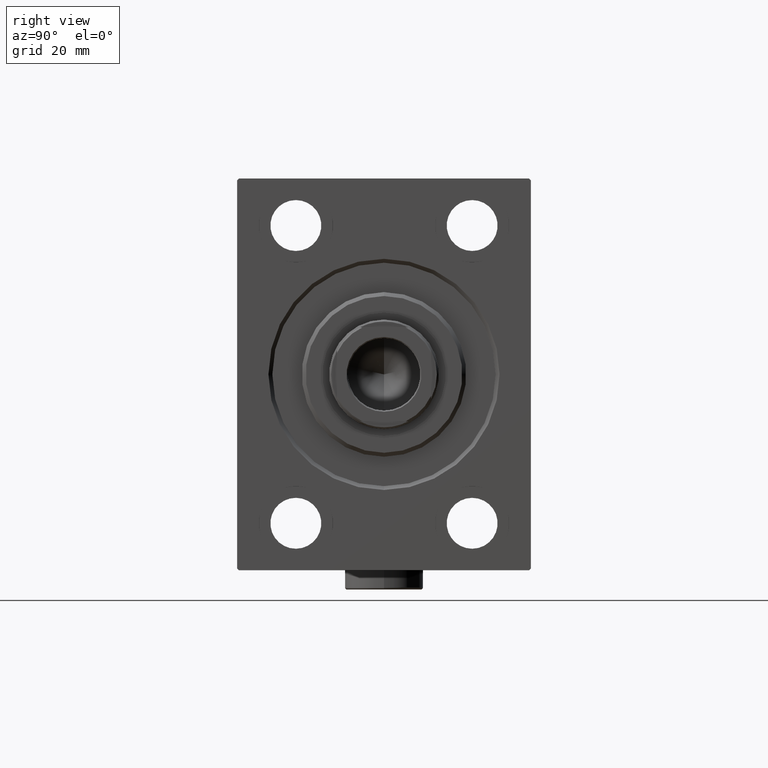
[diagram: clean part render]
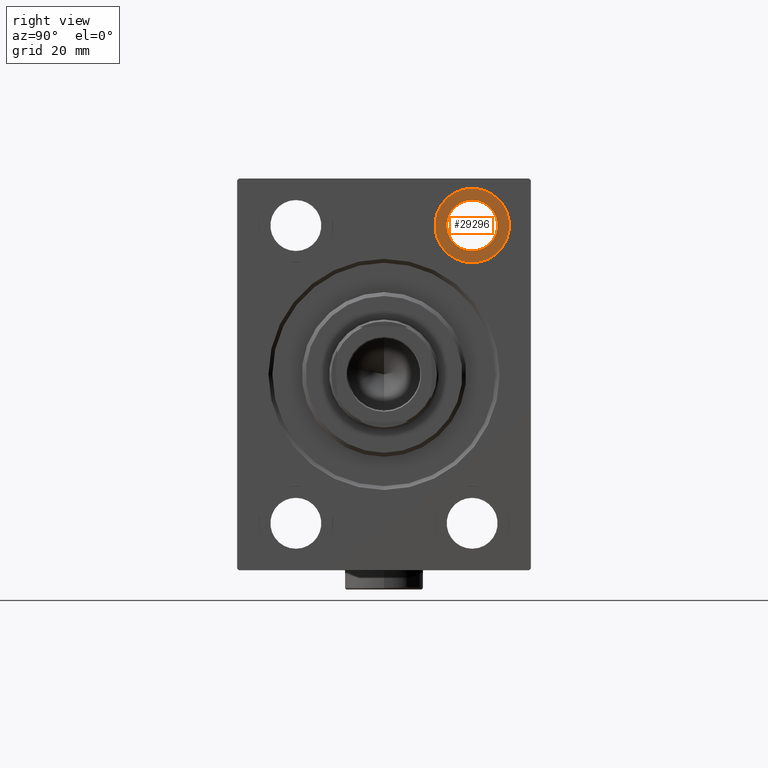
[diagram: same view with one face highlighted and labeled with its STEP entity id]
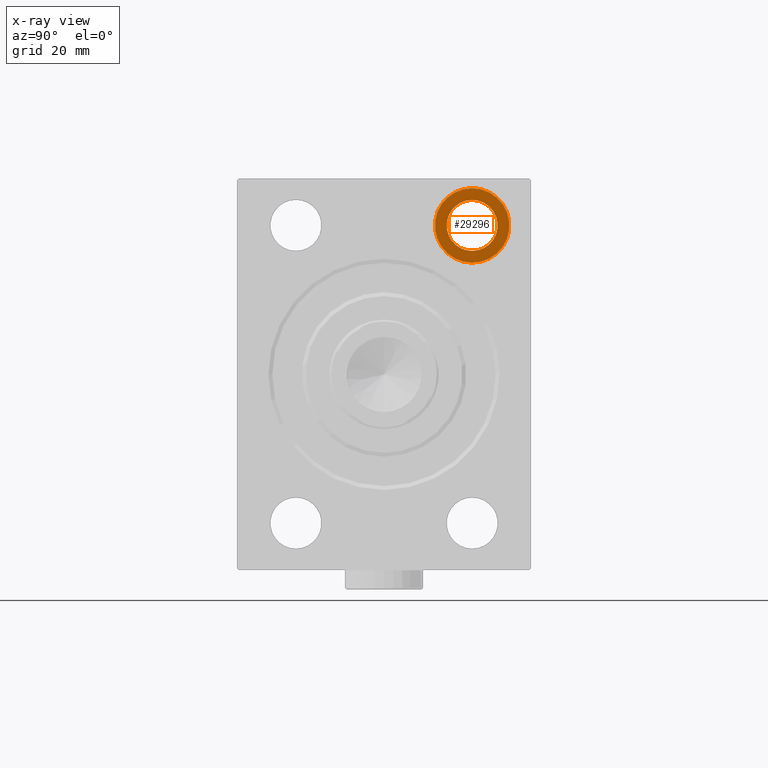
[diagram: x-ray of the same camera — body ghosted, the highlighted face saturated]
A machine part, right view. The second image highlights one B-rep face of the part: STEP entity #29296.
The next image is the same camera in x-ray: the body ghosted, the highlighted face saturated — about 0% of this face is hidden behind the body in this view.
In plain terms, the highlighted planar face has unit normal (1, -0, 0).
Its self-contained STEP definition (entity closure, byte-faithful):
#1007 = EDGE_LOOP ( 'NONE', ( #45617, #8638 ) ) ;
#1679 = FACE_BOUND ( 'NONE', #1007, .T. ) ;
#4326 = CIRCLE ( 'NONE', #28875, 9.500000000000001776 ) ;
#6506 = CARTESIAN_POINT ( 'NONE',  ( 12.99999999999999822, 22.49999999999999289, -44.50000000000000000 ) ) ;
#7369 = CIRCLE ( 'NONE', #42279, 6.499999999999999112 ) ;
#8447 = VERTEX_POINT ( 'NONE', #39860 ) ;
#8638 = ORIENTED_EDGE ( 'NONE', *, *, #14310, .F. ) ;
#9124 = PLANE ( 'NONE',  #21513 ) ;
#9682 = EDGE_LOOP ( 'NONE', ( #22829, #11278 ) ) ;
#10596 = CIRCLE ( 'NONE', #41778, 9.500000000000001776 ) ;
#10824 = DIRECTION ( 'NONE',  ( 0.000000000000000000, 0.000000000000000000, 1.000000000000000000 ) ) ;
#11109 = DIRECTION ( 'NONE',  ( -1.000000000000000000, 0.000000000000000000, 0.000000000000000000 ) ) ;
#11278 = ORIENTED_EDGE ( 'NONE', *, *, #41948, .T. ) ;
#11347 = CARTESIAN_POINT ( 'NONE',  ( 13.00000000000000000, 22.49999999999999289, -38.00000000000000000 ) ) ;
#11531 = CARTESIAN_POINT ( 'NONE',  ( 12.99999999999999822, 22.49999999999999289, -38.00000000000000000 ) ) ;
#12380 = CARTESIAN_POINT ( 'NONE',  ( 13.00000000000000000, 22.49999999999999289, -38.00000000000000000 ) ) ;
#13259 = AXIS2_PLACEMENT_3D ( 'NONE', #11531, #32005, #10824 ) ;
#14310 = EDGE_CURVE ( 'NONE', #41122, #8447, #7369, .T. ) ;
#14379 = CARTESIAN_POINT ( 'NONE',  ( 13.00000000000000000, 22.49999999999999289, -28.49999999999999645 ) ) ;
#15543 = EDGE_CURVE ( 'NONE', #8447, #41122, #28869, .T. ) ;
#21513 = AXIS2_PLACEMENT_3D ( 'NONE', #12380, #22376, #22830 ) ;
#22376 = DIRECTION ( 'NONE',  ( -1.000000000000000000, 0.000000000000000000, 0.000000000000000000 ) ) ;
#22829 = ORIENTED_EDGE ( 'NONE', *, *, #25719, .T. ) ;
#22830 = DIRECTION ( 'NONE',  ( 0.000000000000000000, 0.000000000000000000, 1.000000000000000000 ) ) ;
#25719 = EDGE_CURVE ( 'NONE', #38171, #41583, #4326, .T. ) ;
#26270 = CARTESIAN_POINT ( 'NONE',  ( 12.99999999999999822, 22.49999999999999289, -38.00000000000000000 ) ) ;
#26496 = DIRECTION ( 'NONE',  ( -1.000000000000000000, 0.000000000000000000, 0.000000000000000000 ) ) ;
#28869 = CIRCLE ( 'NONE', #13259, 6.499999999999999112 ) ;
#28875 = AXIS2_PLACEMENT_3D ( 'NONE', #11347, #11109, #42936 ) ;
#29296 = ADVANCED_FACE ( 'NONE', ( #1679, #37005 ), #9124, .T. ) ;
#32005 = DIRECTION ( 'NONE',  ( -1.000000000000000000, 0.000000000000000000, 0.000000000000000000 ) ) ;
#33484 = DIRECTION ( 'NONE',  ( 0.000000000000000000, 0.000000000000000000, 1.000000000000000000 ) ) ;
#37005 = FACE_OUTER_BOUND ( 'NONE', #9682, .T. ) ;
#38171 = VERTEX_POINT ( 'NONE', #14379 ) ;
#39860 = CARTESIAN_POINT ( 'NONE',  ( 12.99999999999999822, 22.49999999999999289, -31.50000000000000000 ) ) ;
#39978 = DIRECTION ( 'NONE',  ( 0.000000000000000000, 0.000000000000000000, 1.000000000000000000 ) ) ;
#41122 = VERTEX_POINT ( 'NONE', #6506 ) ;
#41583 = VERTEX_POINT ( 'NONE', #43862 ) ;
#41778 = AXIS2_PLACEMENT_3D ( 'NONE', #43693, #26496, #39978 ) ;
#41948 = EDGE_CURVE ( 'NONE', #41583, #38171, #10596, .T. ) ;
#42279 = AXIS2_PLACEMENT_3D ( 'NONE', #26270, #44381, #33484 ) ;
#42936 = DIRECTION ( 'NONE',  ( 0.000000000000000000, 0.000000000000000000, 1.000000000000000000 ) ) ;
#43693 = CARTESIAN_POINT ( 'NONE',  ( 13.00000000000000000, 22.49999999999999289, -38.00000000000000000 ) ) ;
#43862 = CARTESIAN_POINT ( 'NONE',  ( 13.00000000000000000, 22.49999999999999289, -47.50000000000000000 ) ) ;
#44381 = DIRECTION ( 'NONE',  ( -1.000000000000000000, 0.000000000000000000, 0.000000000000000000 ) ) ;
#45617 = ORIENTED_EDGE ( 'NONE', *, *, #15543, .F. ) ;